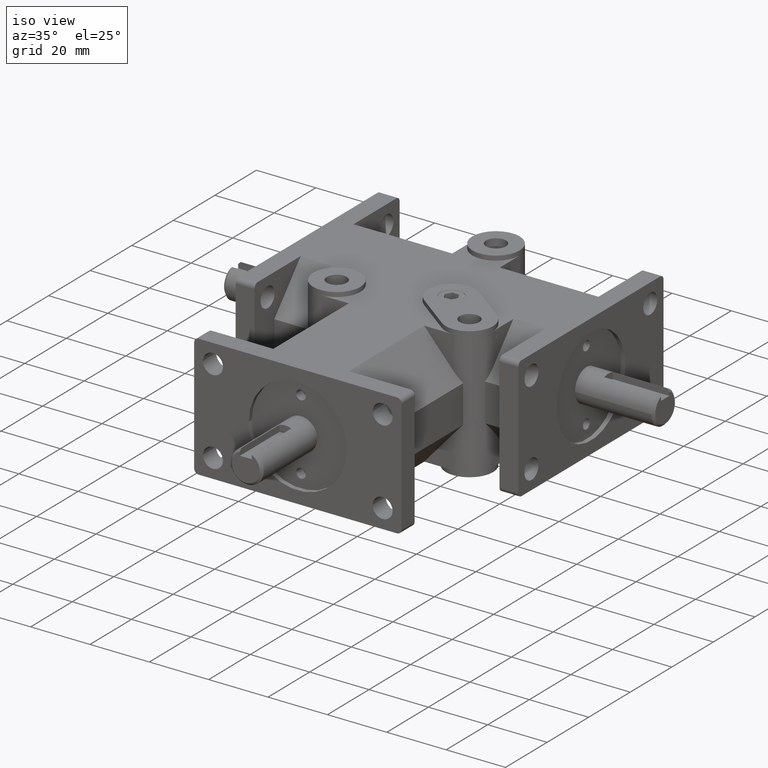
[diagram: clean part render]
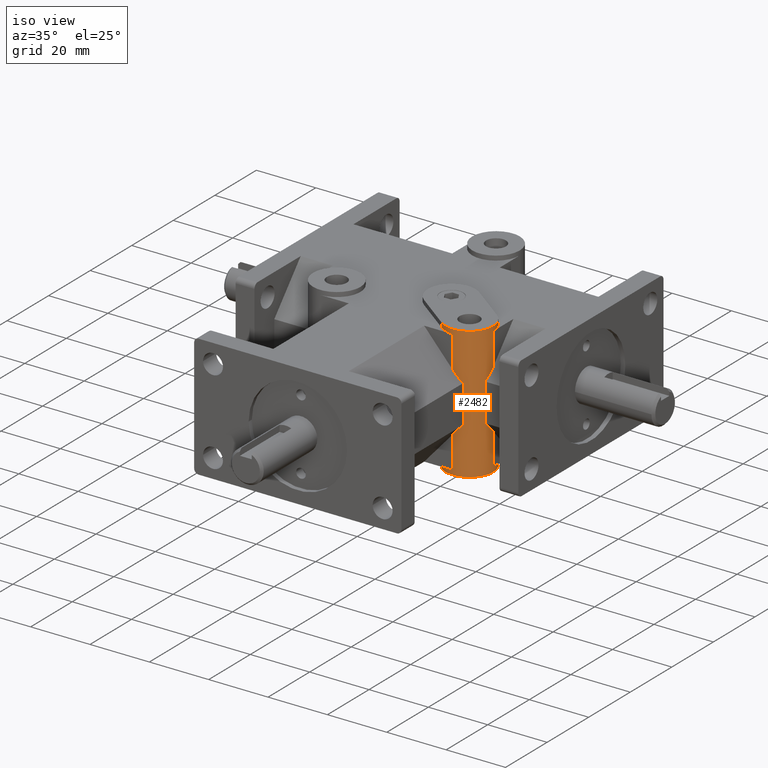
[diagram: same view with one face highlighted and labeled with its STEP entity id]
A machine part, iso view. The second image highlights one B-rep face of the part: STEP entity #2482.
In plain terms, the highlighted cylindrical surface (bore or boss wall) has radius 8.001 mm, axis along (0, 0, 1).
Its self-contained STEP definition (entity closure, byte-faithful):
#101=CYLINDRICAL_SURFACE('',#2739,8.001);
#113=CIRCLE('',#2553,8.001);
#115=CIRCLE('',#2555,8.001);
#193=CIRCLE('',#2693,8.001);
#194=CIRCLE('',#2694,8.001);
#198=CIRCLE('',#2708,8.001);
#207=CIRCLE('',#2735,8.001);
#324=FACE_OUTER_BOUND('',#497,.T.);
#497=EDGE_LOOP('',(#2136,#2137,#2138,#2139,#2140,#2141,#2142,#2143,#2144,
#2145,#2146,#2147,#2148,#2149,#2150,#2151,#2152,#2153,#2154,#2155));
#537=ELLIPSE('',#2535,12.0730291425516,8.001);
#539=ELLIPSE('',#2539,12.0730291425516,8.001);
#541=ELLIPSE('',#2543,12.0730291425516,8.001);
#543=ELLIPSE('',#2547,12.0730291425516,8.001);
#594=LINE('',#3650,#822);
#621=LINE('',#3707,#849);
#741=LINE('',#4156,#969);
#742=LINE('',#4158,#970);
#743=LINE('',#4160,#971);
#744=LINE('',#4162,#972);
#746=LINE('',#4172,#974);
#747=LINE('',#4173,#975);
#748=LINE('',#4174,#976);
#822=VECTOR('',#2880,1.);
#849=VECTOR('',#2923,1.);
#969=VECTOR('',#3387,1.);
#970=VECTOR('',#3390,1.);
#971=VECTOR('',#3393,1.);
#972=VECTOR('',#3396,1.);
#974=VECTOR('',#3410,8.001);
#975=VECTOR('',#3411,1.);
#976=VECTOR('',#3412,1.);
#1021=VERTEX_POINT('',#3561);
#1025=VERTEX_POINT('',#3568);
#1032=VERTEX_POINT('',#3584);
#1033=VERTEX_POINT('',#3586);
#1042=VERTEX_POINT('',#3606);
#1045=VERTEX_POINT('',#3612);
#1051=VERTEX_POINT('',#3627);
#1052=VERTEX_POINT('',#3628);
#1066=VERTEX_POINT('',#3666);
#1067=VERTEX_POINT('',#3668);
#1070=VERTEX_POINT('',#3674);
#1071=VERTEX_POINT('',#3676);
#1193=VERTEX_POINT('',#4053);
#1194=VERTEX_POINT('',#4055);
#1195=VERTEX_POINT('',#4057);
#1211=VERTEX_POINT('',#4109);
#1212=VERTEX_POINT('',#4110);
#1222=VERTEX_POINT('',#4164);
#1258=EDGE_CURVE('',#1025,#1021,#537,.T.);
#1265=EDGE_CURVE('',#1032,#1033,#539,.T.);
#1278=EDGE_CURVE('',#1042,#1045,#541,.T.);
#1284=EDGE_CURVE('',#1051,#1052,#543,.T.);
#1295=EDGE_CURVE('',#1033,#1025,#594,.T.);
#1305=EDGE_CURVE('',#1066,#1067,#113,.T.);
#1309=EDGE_CURVE('',#1070,#1071,#115,.T.);
#1327=EDGE_CURVE('',#1051,#1045,#621,.T.);
#1493=EDGE_CURVE('',#1193,#1194,#193,.T.);
#1494=EDGE_CURVE('',#1194,#1195,#194,.T.);
#1520=EDGE_CURVE('',#1211,#1212,#198,.T.);
#1542=EDGE_CURVE('',#1032,#1071,#741,.T.);
#1543=EDGE_CURVE('',#1042,#1066,#742,.T.);
#1544=EDGE_CURVE('',#1195,#1052,#743,.T.);
#1545=EDGE_CURVE('',#1193,#1021,#744,.T.);
#1546=EDGE_CURVE('',#1222,#1222,#207,.T.);
#1549=EDGE_CURVE('',#1194,#1222,#746,.T.);
#1550=EDGE_CURVE('',#1070,#1211,#747,.T.);
#1551=EDGE_CURVE('',#1067,#1212,#748,.T.);
#2136=ORIENTED_EDGE('',*,*,#1284,.T.);
#2137=ORIENTED_EDGE('',*,*,#1544,.F.);
#2138=ORIENTED_EDGE('',*,*,#1494,.F.);
#2139=ORIENTED_EDGE('',*,*,#1549,.T.);
#2140=ORIENTED_EDGE('',*,*,#1546,.T.);
#2141=ORIENTED_EDGE('',*,*,#1549,.F.);
#2142=ORIENTED_EDGE('',*,*,#1493,.F.);
#2143=ORIENTED_EDGE('',*,*,#1545,.T.);
#2144=ORIENTED_EDGE('',*,*,#1258,.F.);
#2145=ORIENTED_EDGE('',*,*,#1295,.F.);
#2146=ORIENTED_EDGE('',*,*,#1265,.F.);
#2147=ORIENTED_EDGE('',*,*,#1542,.T.);
#2148=ORIENTED_EDGE('',*,*,#1309,.F.);
#2149=ORIENTED_EDGE('',*,*,#1550,.T.);
#2150=ORIENTED_EDGE('',*,*,#1520,.T.);
#2151=ORIENTED_EDGE('',*,*,#1551,.F.);
#2152=ORIENTED_EDGE('',*,*,#1305,.F.);
#2153=ORIENTED_EDGE('',*,*,#1543,.F.);
#2154=ORIENTED_EDGE('',*,*,#1278,.T.);
#2155=ORIENTED_EDGE('',*,*,#1327,.F.);
#2482=ADVANCED_FACE('',(#324),#101,.T.);
#2535=AXIS2_PLACEMENT_3D('',#3570,#2819,#2820);
#2539=AXIS2_PLACEMENT_3D('',#3587,#2832,#2833);
#2543=AXIS2_PLACEMENT_3D('',#3614,#2851,#2852);
#2547=AXIS2_PLACEMENT_3D('',#3629,#2863,#2864);
#2553=AXIS2_PLACEMENT_3D('',#3669,#2894,#2895);
#2555=AXIS2_PLACEMENT_3D('',#3677,#2900,#2901);
#2693=AXIS2_PLACEMENT_3D('',#4056,#3276,#3277);
#2694=AXIS2_PLACEMENT_3D('',#4058,#3278,#3279);
#2708=AXIS2_PLACEMENT_3D('',#4111,#3328,#3329);
#2735=AXIS2_PLACEMENT_3D('',#4165,#3399,#3400);
#2739=AXIS2_PLACEMENT_3D('',#4171,#3408,#3409);
#2819=DIRECTION('center_axis',(0.,0.748870055165724,0.662716862978517));
#2820=DIRECTION('ref_axis',(0.,0.662716862978517,-0.748870055165724));
#2832=DIRECTION('center_axis',(0.,0.748870055165724,-0.662716862978517));
#2833=DIRECTION('ref_axis',(0.,0.662716862978517,0.748870055165724));
#2851=DIRECTION('center_axis',(0.748870055165724,0.,0.662716862978517));
#2852=DIRECTION('ref_axis',(0.662716862978517,0.,-0.748870055165724));
#2863=DIRECTION('center_axis',(0.748870055165724,0.,-0.662716862978517));
#2864=DIRECTION('ref_axis',(0.662716862978517,0.,0.748870055165724));
#2880=DIRECTION('',(0.,0.,-1.));
#2894=DIRECTION('center_axis',(0.,0.,-1.));
#2895=DIRECTION('ref_axis',(1.,0.,0.));
#2900=DIRECTION('center_axis',(0.,0.,-1.));
#2901=DIRECTION('ref_axis',(1.,0.,0.));
#2923=DIRECTION('',(0.,0.,1.));
#3276=DIRECTION('center_axis',(0.,0.,1.));
#3277=DIRECTION('ref_axis',(1.,0.,0.));
#3278=DIRECTION('center_axis',(0.,0.,1.));
#3279=DIRECTION('ref_axis',(1.,0.,0.));
#3328=DIRECTION('center_axis',(0.,0.,-1.));
#3329=DIRECTION('ref_axis',(1.,0.,0.));
#3387=DIRECTION('',(0.,0.,1.));
#3390=DIRECTION('',(0.,0.,1.));
#3393=DIRECTION('',(0.,0.,1.));
#3396=DIRECTION('',(0.,0.,1.));
#3399=DIRECTION('center_axis',(0.,0.,1.));
#3400=DIRECTION('ref_axis',(1.,0.,0.));
#3408=DIRECTION('center_axis',(0.,0.,1.));
#3409=DIRECTION('ref_axis',(1.,0.,0.));
#3410=DIRECTION('',(0.,0.,-1.));
#3411=DIRECTION('',(0.,0.,1.));
#3412=DIRECTION('',(0.,0.,1.));
#3561=CARTESIAN_POINT('',(30.353,50.673,-9.79424000000002));
#3568=CARTESIAN_POINT('',(29.749681866639,47.625,-6.35));
#3570=CARTESIAN_POINT('Origin',(22.352,50.673,-9.79424));
#3584=CARTESIAN_POINT('',(30.353,50.673,9.79424000000003));
#3586=CARTESIAN_POINT('',(29.749681866639,47.625,6.35));
#3587=CARTESIAN_POINT('Origin',(22.352,50.673,9.79424));
#3606=CARTESIAN_POINT('',(22.352,42.672,9.79424000000003));
#3612=CARTESIAN_POINT('',(25.4,43.275318133361,6.35));
#3614=CARTESIAN_POINT('Origin',(22.352,50.673,9.79423999999999));
#3627=CARTESIAN_POINT('',(25.4,43.275318133361,-6.35));
#3628=CARTESIAN_POINT('',(22.352,42.672,-9.79424000000003));
#3629=CARTESIAN_POINT('Origin',(22.352,50.673,-9.79424));
#3650=CARTESIAN_POINT('',(29.749681866639,47.625,0.));
#3666=CARTESIAN_POINT('',(22.352,42.672,20.701));
#3668=CARTESIAN_POINT('',(17.5514,44.2722,20.701));
#3669=CARTESIAN_POINT('Origin',(22.352,50.673,20.701));
#3674=CARTESIAN_POINT('',(27.1526,57.0738,20.701));
#3676=CARTESIAN_POINT('',(30.353,50.673,20.701));
#3677=CARTESIAN_POINT('Origin',(22.352,50.673,20.701));
#3707=CARTESIAN_POINT('',(25.4,43.275318133361,0.));
#4053=CARTESIAN_POINT('',(30.353,50.673,-20.701));
#4055=CARTESIAN_POINT('',(14.351,50.673,-20.701));
#4056=CARTESIAN_POINT('Origin',(22.352,50.673,-20.701));
#4057=CARTESIAN_POINT('',(22.352,42.672,-20.701));
#4058=CARTESIAN_POINT('Origin',(22.352,50.673,-20.701));
#4109=CARTESIAN_POINT('',(27.1526,57.0738,22.225));
#4110=CARTESIAN_POINT('',(17.5514,44.2722,22.225));
#4111=CARTESIAN_POINT('Origin',(22.352,50.673,22.225));
#4156=CARTESIAN_POINT('',(30.353,50.673,0.));
#4158=CARTESIAN_POINT('',(22.352,42.672,0.));
#4160=CARTESIAN_POINT('',(22.352,42.672,0.));
#4162=CARTESIAN_POINT('',(30.353,50.673,0.));
#4164=CARTESIAN_POINT('',(14.351,50.673,-22.225));
#4165=CARTESIAN_POINT('Origin',(22.352,50.673,-22.225));
#4171=CARTESIAN_POINT('Origin',(22.352,50.673,0.));
#4172=CARTESIAN_POINT('',(14.351,50.673,0.));
#4173=CARTESIAN_POINT('',(27.1526,57.0738,0.));
#4174=CARTESIAN_POINT('',(17.5514,44.2722,0.));